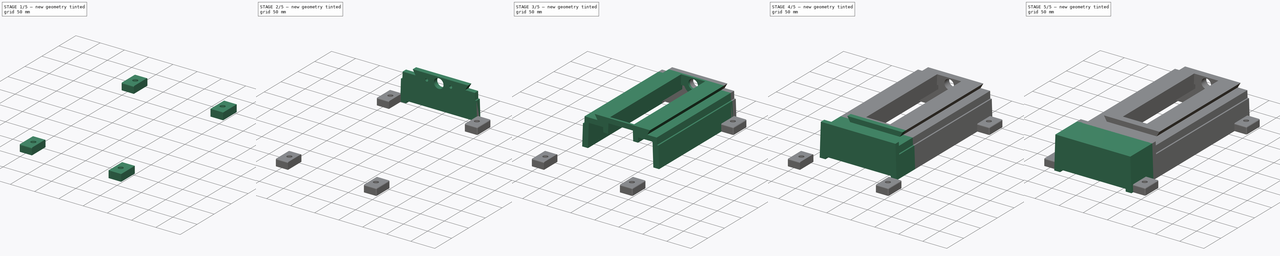
[diagram: build sequence overview — one tinted view per stage of 5, left to right]
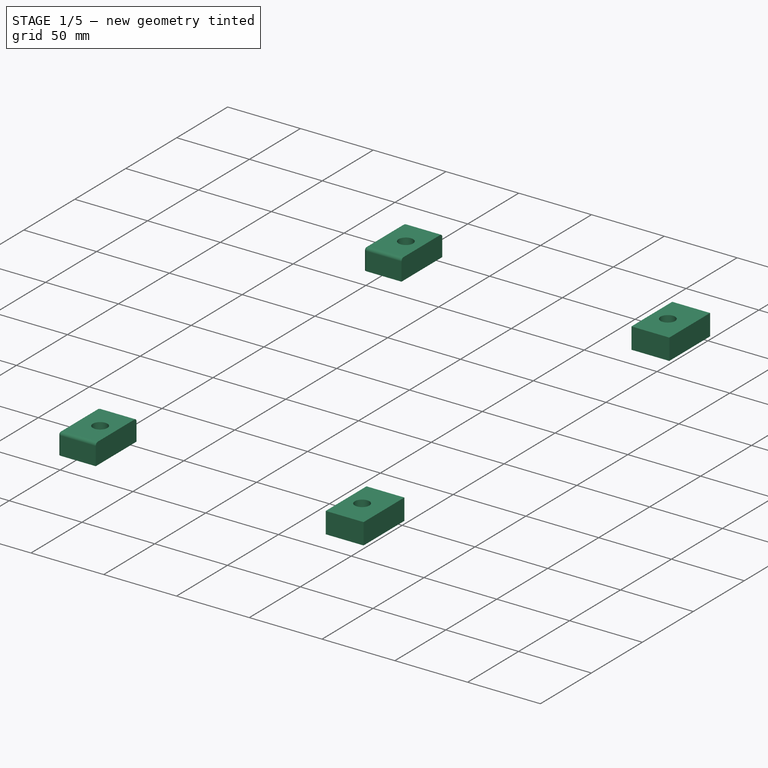
[diagram: stage 1 of 5 — iso view after this stage's code; geometry added in this stage tinted green]
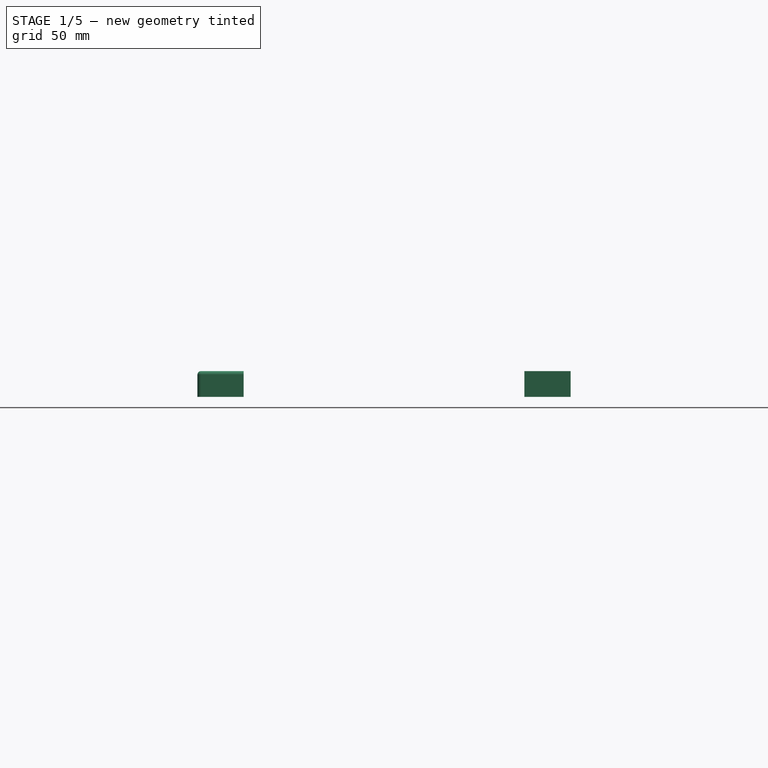
[diagram: stage 1 of 5 — front view after this stage's code; geometry added in this stage tinted green]
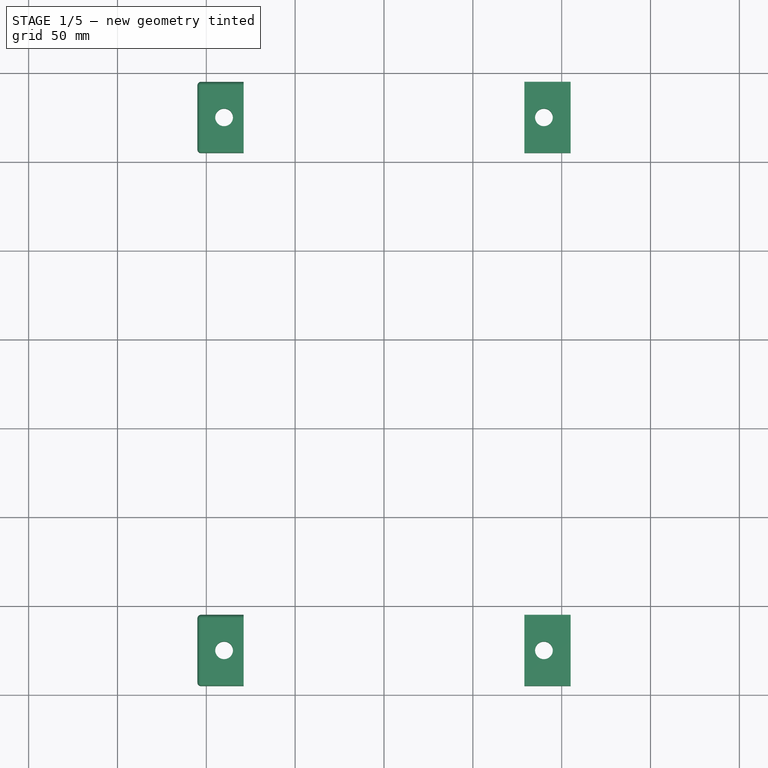
[diagram: stage 1 of 5 — top view after this stage's code; geometry added in this stage tinted green]
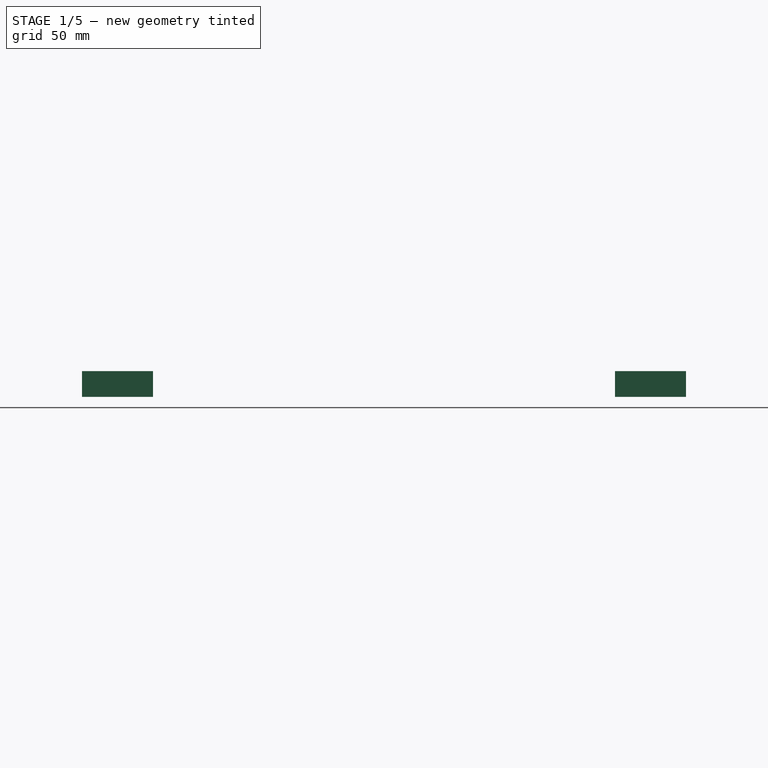
[diagram: stage 1 of 5 — right view after this stage's code; geometry added in this stage tinted green]
FCSTD DOCUMENT  (FreeCAD 0.15R4671 (Git))
Label: Base-131
License: CreativeCommons Attribution-ShareAlike
LicenseURL: http://creativecommons.org/licenses/by-sa/4.0/
objects: Sketcher::SketchObject×11, PartDesign::Pad×10, PartDesign::Fillet×4, App::DocumentObjectGroup×1, PartDesign::Pocket×1
note: 37 computed .brp shape members not serialized (recipe doc carries the construction recipe); baked Part::Feature solids carry a one-line shape summary decoded from their .brp

FEATURE [Sketcher::SketchObject] Sketch011  label="Sketch-011"
  sketch-geometry (20):
    g0: LineSegment StartX=-105 StartY=-5 StartZ=0 EndX=-79 EndY=-5 EndZ=0
    g1: LineSegment StartX=-79 StartY=-5 StartZ=0 EndX=-79 EndY=-45 EndZ=0
    g2: LineSegment StartX=-79 StartY=-45 StartZ=0 EndX=-105 EndY=-45 EndZ=0
    g3: LineSegment StartX=-105 StartY=-45 StartZ=0 EndX=-105 EndY=-5 EndZ=0
    g4: LineSegment StartX=79 StartY=-5 StartZ=0 EndX=105 EndY=-5 EndZ=0
    g5: LineSegment StartX=105 StartY=-5 StartZ=0 EndX=105 EndY=-45 EndZ=0
    g6: LineSegment StartX=105 StartY=-45 StartZ=0 EndX=79 EndY=-45 EndZ=0
    g7: LineSegment StartX=79 StartY=-45 StartZ=0 EndX=79 EndY=-5 EndZ=0
    g8: LineSegment StartX=-105 StartY=-305 StartZ=0 EndX=-79 EndY=-305 EndZ=0
    g9: LineSegment StartX=-79 StartY=-305 StartZ=0 EndX=-79 EndY=-345 EndZ=0
    g10: LineSegment StartX=-79 StartY=-345 StartZ=0 EndX=-105 EndY=-345 EndZ=0
    g11: LineSegment StartX=-105 StartY=-345 StartZ=0 EndX=-105 EndY=-305 EndZ=0
    g12: LineSegment StartX=79 StartY=-305 StartZ=0 EndX=105 EndY=-305 EndZ=0
    g13: LineSegment StartX=105 StartY=-305 StartZ=0 EndX=105 EndY=-345 EndZ=0
    g14: LineSegment StartX=105 StartY=-345 StartZ=0 EndX=79 EndY=-345 EndZ=0
    g15: LineSegment StartX=79 StartY=-345 StartZ=0 EndX=79 EndY=-305 EndZ=0
    g16: Circle CenterX=-90 CenterY=-25 CenterZ=0 NormalX=0 NormalY=0 NormalZ=1 Radius=5
    g17: Circle CenterX=90 CenterY=-25 CenterZ=0 NormalX=0 NormalY=0 NormalZ=1 Radius=5
    g18: Circle CenterX=90 CenterY=-325 CenterZ=0 NormalX=0 NormalY=0 NormalZ=1 Radius=5
    g19: Circle CenterX=-90 CenterY=-325 CenterZ=0 NormalX=0 NormalY=0 NormalZ=1 Radius=5
  constraints (56):
    c: Coincident(g0,g1)
    c: Coincident(g1,g2)
    c: Coincident(g2,g3)
    c: Coincident(g3,g0)
    c: Horizontal(g0)
    c: Horizontal(g2)
    c: Vertical(g1)
    c: Vertical(g3)
    c: Coincident(g4,g5)
    c: Coincident(g5,g6)
    c: Coincident(g6,g7)
    c: Coincident(g7,g4)
    c: Horizontal(g4)
    c: Horizontal(g6)
    c: Vertical(g5)
    c: Vertical(g7)
    c: Coincident(g8,g9)
    c: Coincident(g9,g10)
    c: Coincident(g10,g11)
    c: Coincident(g11,g8)
    c: Horizontal(g8)
    c: Horizontal(g10)
    c: Vertical(g9)
    c: Vertical(g11)
    c: Coincident(g12,g13)
    c: Coincident(g13,g14)
    c: Coincident(g14,g15)
    c: Coincident(g15,g12)
    c: Horizontal(g12)
    c: Horizontal(g14)
    c: Vertical(g13)
    c: Vertical(g15)
    c: Symmetric(g0,g4,g-2)
    c: Symmetric(g9,g14,g-2)
    c: Equal(g0,g4)
    c: Equal(g4,g12)
    c: Equal(g12,g8)
    c: Equal(g3,g5)
    c: Equal(g5,g13)
    c: Equal(g13,g11)
    c: DistanceY(g5,g4) = 40
    c: DistanceX(g4,g4) = 26
    c: Equal(g16,g17)
    c: Equal(g17,g18)
    c: Equal(g18,g19)
    c: Radius(g17) = 5
    c: DistanceX(g0,g4) = 158
    c: Symmetric(g16,g17,g-2)
    c: DistanceX(g16,g17) = 180
    c: DistanceY(g-1,g4) = -5
    c: DistanceY(g17,g4) = 20
    c: DistanceX(g8,g12) = 158
    c: DistanceX(g18,g19) = -180
    c: Symmetric(g19,g18,g-2)
    c: DistanceY(g18,g12) = 20
    c: DistanceY(g16,g19) = -300
FEATURE [PartDesign::Pad] Pad009
  Length = 14.5
  Length2 = 100
  Sketch = -> Sketch011
  Type = 0
FEATURE [PartDesign::Fillet] Fillet
  Base = -> Pad009 [Edge46,Edge49,Edge57,Edge53,Edge55]
  Radius = 2
FEATURE [PartDesign::Fillet] Fillet001
  Base = -> Fillet [Edge55,Edge57,Edge59,Edge48,Edge51]
  Radius = 2
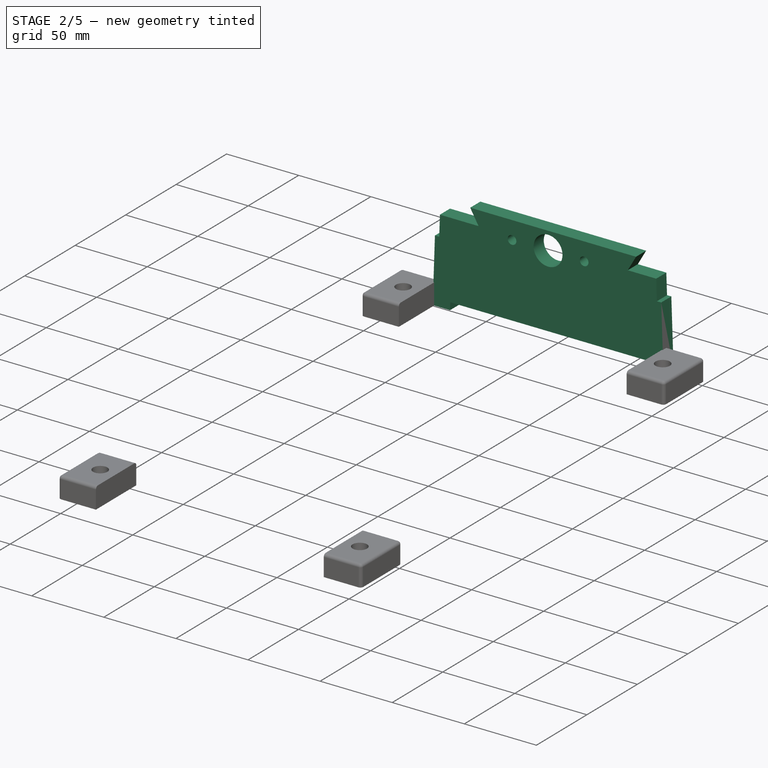
[diagram: stage 2 of 5 — iso view after this stage's code; geometry added in this stage tinted green]
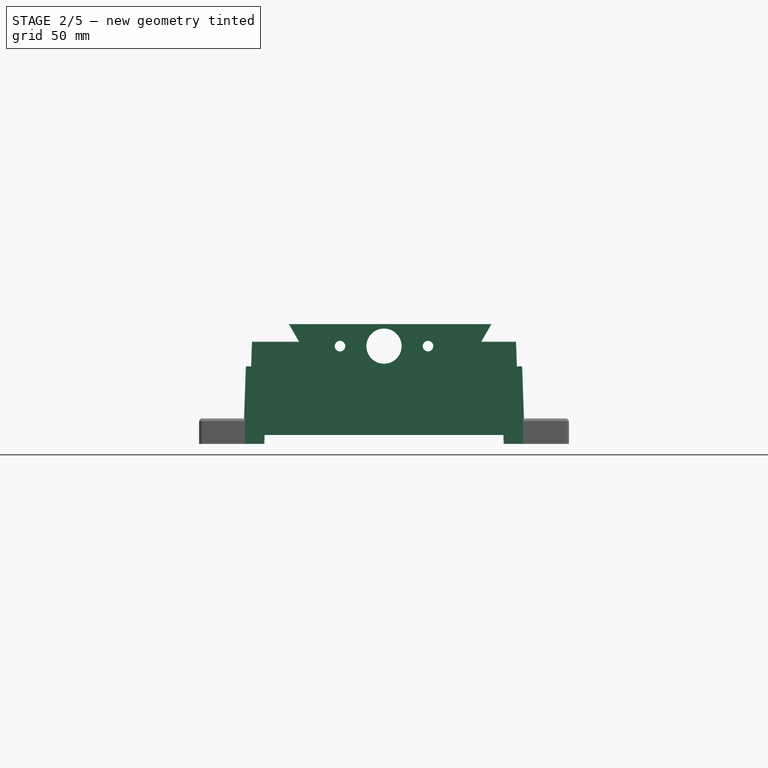
[diagram: stage 2 of 5 — front view after this stage's code; geometry added in this stage tinted green]
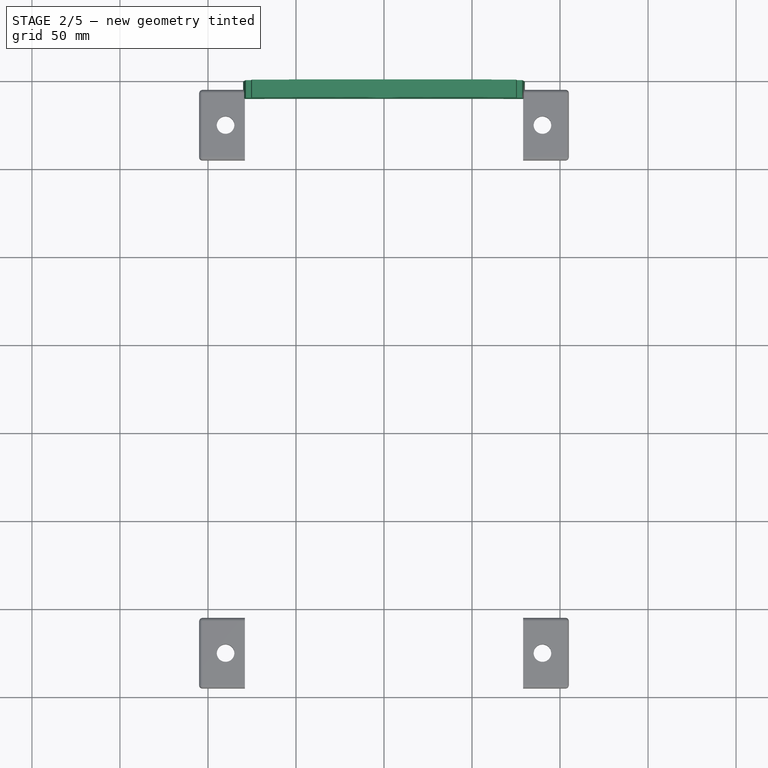
[diagram: stage 2 of 5 — top view after this stage's code; geometry added in this stage tinted green]
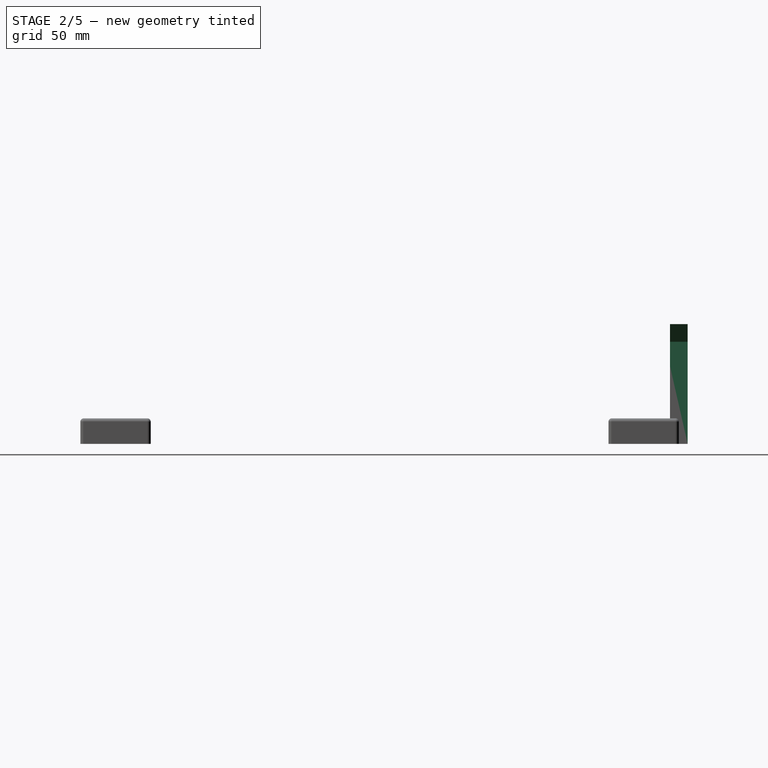
[diagram: stage 2 of 5 — right view after this stage's code; geometry added in this stage tinted green]
FEATURE [Sketcher::SketchObject] Sketch  label="Section-001"
  Placement = pos=(0,0,0) rot=(1,0,0;1.5708rad)
  sketch-geometry (19):
    g0: LineSegment StartX=-75 StartY=58 StartZ=0 EndX=-48.2265 EndY=58 EndZ=0
    g1: LineSegment StartX=-48.2265 StartY=58 StartZ=0 EndX=-54 EndY=68 EndZ=0
    g2: LineSegment StartX=-54 StartY=68 StartZ=0 EndX=61 EndY=68 EndZ=0
    g3: LineSegment StartX=61 StartY=68 StartZ=0 EndX=55.2265 EndY=58 EndZ=0
    g4: LineSegment StartX=55.2265 StartY=58 StartZ=0 EndX=75 EndY=58 EndZ=0
    g5: LineSegment StartX=80 StartY=0 StartZ=0 EndX=68 EndY=0 EndZ=0
    g6: LineSegment StartX=68 StartY=0 StartZ=0 EndX=67.8254 EndY=5 EndZ=0
    g7: LineSegment StartX=67.8254 StartY=5 StartZ=0 EndX=-67.8254 EndY=5 EndZ=0
    g8: LineSegment StartX=-67.8254 StartY=5 StartZ=0 EndX=-68 EndY=0 EndZ=0
    g9: LineSegment StartX=-68 StartY=0 StartZ=0 EndX=-80 EndY=0 EndZ=0
    g10: Circle CenterX=25 CenterY=55.5 CenterZ=0 NormalX=0 NormalY=0 NormalZ=1 Radius=3
    g11: Circle CenterX=-25 CenterY=55.5 CenterZ=0 NormalX=0 NormalY=0 NormalZ=1 Radius=3
    g12: Circle CenterX=0 CenterY=55.5 CenterZ=0 NormalX=0 NormalY=0 NormalZ=1 Radius=10
    g13: LineSegment StartX=-80 StartY=0 StartZ=0 EndX=-78.4635 EndY=44 EndZ=0
    g14: LineSegment StartX=-78.4635 StartY=44 StartZ=0 EndX=-75.4889 EndY=44 EndZ=0
    g15: LineSegment StartX=-75.4889 StartY=44 StartZ=0 EndX=-75 EndY=58 EndZ=0
    g16: LineSegment StartX=80 StartY=0 StartZ=0 EndX=78.4635 EndY=44 EndZ=0
    g17: LineSegment StartX=78.4635 StartY=44 StartZ=0 EndX=75.4889 EndY=44 EndZ=0
    g18: LineSegment StartX=75.4889 StartY=44 StartZ=0 EndX=75 EndY=58 EndZ=0
  constraints (55):
    c: Horizontal(g0)
    c: Coincident(g0,g1)
    c: Coincident(g1,g2)
    c: Horizontal(g2)
    c: Coincident(g2,g3)
    c: Coincident(g3,g4)
    c: Horizontal(g4)
    c: Horizontal(g5)
    c: Coincident(g5,g6)
    c: Coincident(g6,g7)
    c: Horizontal(g7)
    c: Coincident(g7,g8)
    c: PointOnObject(g8,g-1)
    c: Coincident(g8,g9)
    c: PointOnObject(g9,g-1)
    c: DistanceX(g1,g2) = 115
    c: DistanceY(g9,g0) = 58
    c: DistanceY(g1,g8) = -68
    c: Angle(g0,g1,g0) = 2.0944
    c: Angle(g4,g3) = 1.0472
    c: DistanceX(g0,g4) = 150
    c: Symmetric(g0,g4,g-2)
    c: Symmetric(g9,g5,g-2)
    c: DistanceX(g9,g5) = 160
    c: DistanceX(g-1,g12) = 0
    c: DistanceX(g11,g10) = 50
    c: Equal(g11,g10)
    c: DistanceY(g5,g6) = 5
    c: DistanceX(g5,g5) = -12
    c: Radius(g11) = 3
    c: Radius(g12) = 10
    c: Coincident(g13,g14)
    c: Coincident(g14,g15)
    c: Coincident(g9,g13)
    c: Coincident(g15,g0)
    c: Horizontal(g14)
    c: Coincident(g16,g17)
    c: Coincident(g17,g18)
    c: Coincident(g18,g4)
    c: Coincident(g5,g16)
    c: Angle(g9,g13) = 1.53589
    c: Horizontal(g17)
    c: Angle(g15,g0) = 1.6057
    c: Angle(g4,g18) = 1.6057
    c: Equal(g18,g15)
    c: DistanceY(g16,g4) = 14
    c: DistanceY(g2,g12) = -12.5
    c: DistanceY(g10,g2) = 12.5
    c: Equal(g9,g5)
    c: Angle(g8,g7) = 1.6057
    c: Angle(g7,g6) = 1.6057
    c: DistanceX(g11,g12) = 25
    c: DistanceY(g11,g1) = 12.5
    c: Angle(g16,g5) = 1.53589
    c: DistanceX(g4,g2) = -14
FEATURE [App::DocumentObjectGroup] Group
FEATURE [PartDesign::Pad] Pad  label="X-Axis Front"
  Length = 10
  Length2 = 100
  Placement = pos=(0,0,0) rot=(1,0,0;1.5708rad)
  Sketch = -> Sketch
  Type = 0
FEATURE [PartDesign::Fillet] Fillet002
  Base = -> Fillet001 [Edge81,Edge83,Edge86,Edge89,Edge84]
  Radius = 2
FEATURE [PartDesign::Fillet] Fillet003
  Base = -> Fillet002 [Edge98,Edge100,Edge103,Edge106,Edge101]
  Radius = 2
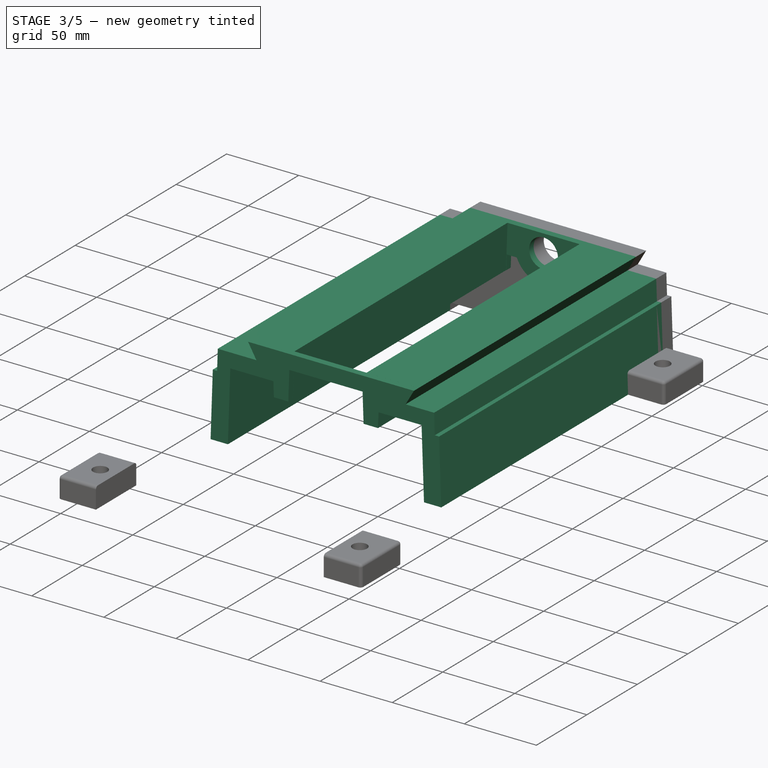
[diagram: stage 3 of 5 — iso view after this stage's code; geometry added in this stage tinted green]
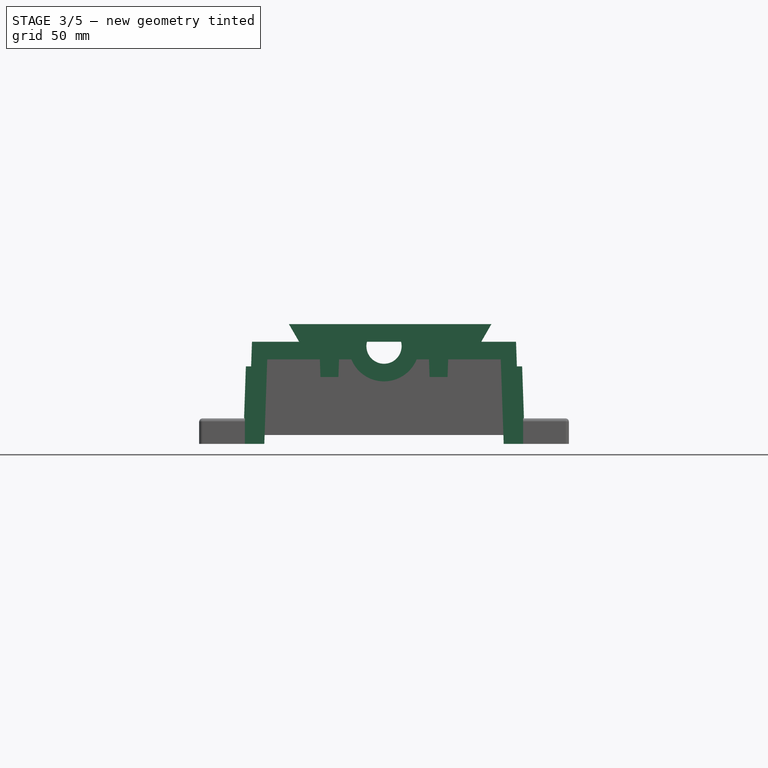
[diagram: stage 3 of 5 — front view after this stage's code; geometry added in this stage tinted green]
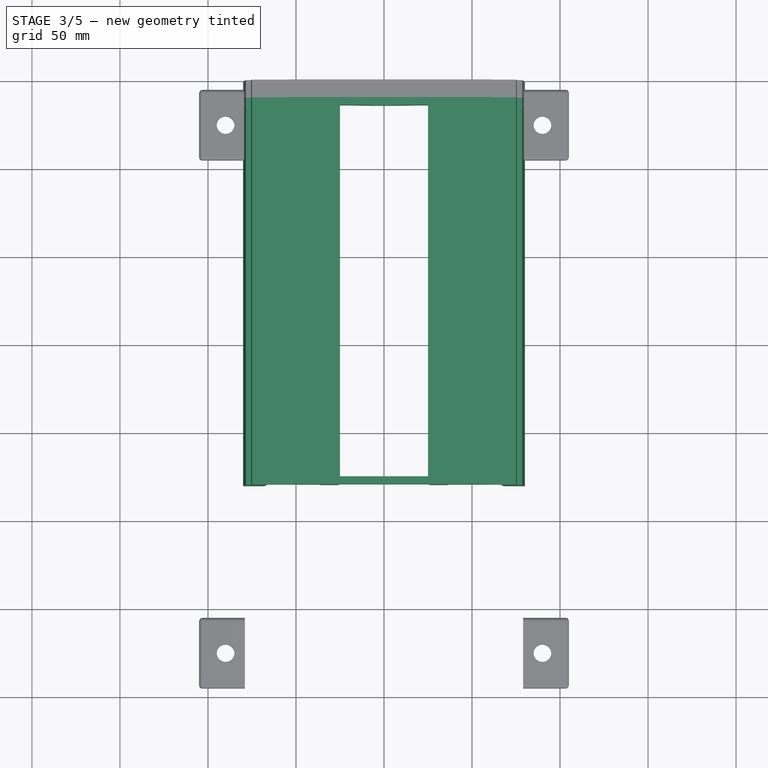
[diagram: stage 3 of 5 — top view after this stage's code; geometry added in this stage tinted green]
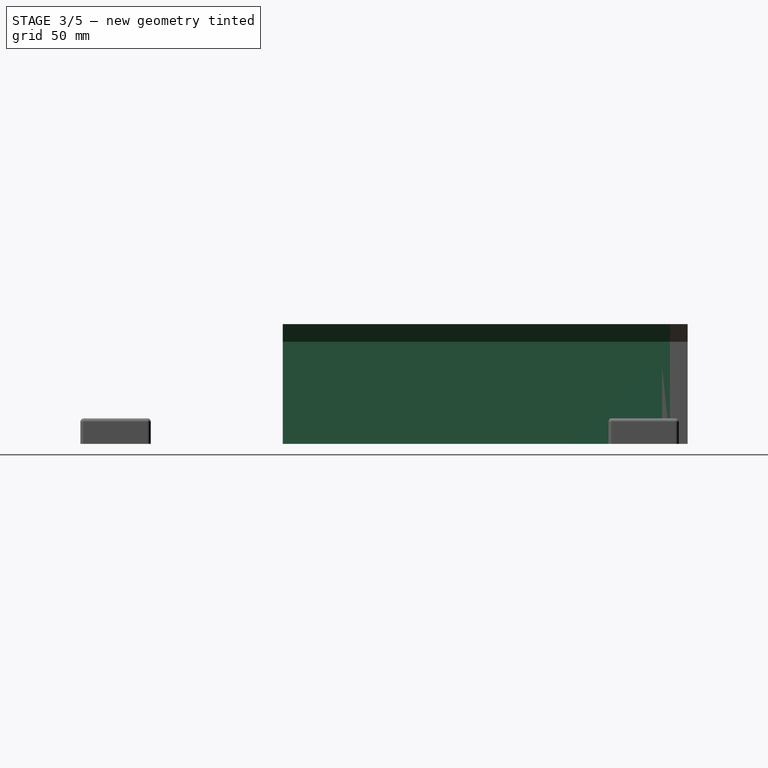
[diagram: stage 3 of 5 — right view after this stage's code; geometry added in this stage tinted green]
FEATURE [Sketcher::SketchObject] Sketch002  label="Section-002"
  Placement = pos=(0,-10,0) rot=(1,0,0;1.5708rad)
  Support = -> Pad [Face21]
  sketch-geometry (27):
    g0: LineSegment StartX=-75 StartY=58 StartZ=0 EndX=-48.2265 EndY=58 EndZ=0
    g1: LineSegment StartX=-48.2265 StartY=58 StartZ=0 EndX=-54 EndY=68 EndZ=0
    g2: LineSegment StartX=-54 StartY=68 StartZ=0 EndX=61 EndY=68 EndZ=0
    g3: LineSegment StartX=61 StartY=68 StartZ=0 EndX=55.2265 EndY=58 EndZ=0
    g4: LineSegment StartX=55.2265 StartY=58 StartZ=0 EndX=75 EndY=58 EndZ=0
    g5: LineSegment StartX=80 StartY=0 StartZ=0 EndX=68 EndY=0 EndZ=0
    g6: LineSegment StartX=68 StartY=0 StartZ=0 EndX=66.3238 EndY=48 EndZ=0
    g7: LineSegment StartX=-66.3238 StartY=48 StartZ=0 EndX=-68 EndY=0 EndZ=0
    g8: LineSegment StartX=-68 StartY=0 StartZ=0 EndX=-80 EndY=0 EndZ=0
    g9: Circle CenterX=0 CenterY=55.5 CenterZ=0 NormalX=0 NormalY=0 NormalZ=1 Radius=10
    g10: LineSegment StartX=-80 StartY=0 StartZ=0 EndX=-78.4635 EndY=44 EndZ=0
    g11: LineSegment StartX=-78.4635 StartY=44 StartZ=0 EndX=-75.4889 EndY=44 EndZ=0
    g12: LineSegment StartX=-75.4889 StartY=44 StartZ=0 EndX=-75 EndY=58 EndZ=0
    g13: LineSegment StartX=80 StartY=0 StartZ=0 EndX=78.4635 EndY=44 EndZ=0
    g14: LineSegment StartX=78.4635 StartY=44 StartZ=0 EndX=75.4889 EndY=44 EndZ=0
    g15: LineSegment StartX=75.4889 StartY=44 StartZ=0 EndX=75 EndY=58 EndZ=0
    g16: ArcOfCircle CenterX=0 CenterY=55.5 CenterZ=0 NormalX=0 NormalY=0 NormalZ=1 Radius=20 StartAngle=3.52599 EndAngle=5.89879
    g17: LineSegment StartX=-66.3238 StartY=48 StartZ=0 EndX=-36.2484 EndY=48 EndZ=0
    g18: LineSegment StartX=-36.2484 StartY=48 StartZ=0 EndX=-35.8992 EndY=38 EndZ=0
    g19: LineSegment StartX=-35.8992 StartY=38 StartZ=0 EndX=-25.8992 EndY=38 EndZ=0
    g20: LineSegment StartX=-25.8992 StartY=38 StartZ=0 EndX=-25.55 EndY=48 EndZ=0
    g21: LineSegment StartX=-25.55 StartY=48 StartZ=0 EndX=-18.5405 EndY=48 EndZ=0
    g22: LineSegment StartX=18.5405 StartY=48 StartZ=0 EndX=25.55 EndY=48 EndZ=0
    g23: LineSegment StartX=25.55 StartY=48 StartZ=0 EndX=25.8992 EndY=38 EndZ=0
    g24: LineSegment StartX=25.8992 StartY=38 StartZ=0 EndX=35.8992 EndY=38 EndZ=0
    g25: LineSegment StartX=35.8992 StartY=38 StartZ=0 EndX=36.2484 EndY=48 EndZ=0
    g26: LineSegment StartX=36.2484 StartY=48 StartZ=0 EndX=66.3238 EndY=48 EndZ=0
  constraints (79):
    c: Horizontal(g0)
    c: Coincident(g0,g1)
    c: Coincident(g1,g2)
    c: Horizontal(g2)
    c: Coincident(g2,g3)
    c: Coincident(g3,g4)
    c: Horizontal(g4)
    c: Horizontal(g5)
    c: Coincident(g5,g6)
    c: PointOnObject(g7,g-1)
    c: Coincident(g7,g8)
    c: PointOnObject(g8,g-1)
    c: DistanceX(g1,g2) = 115
    c: DistanceY(g8,g0) = 58
    c: DistanceY(g1,g7) = -68
    c: Angle(g0,g1,g0) = 2.0944
    c: Angle(g4,g3) = 1.0472
    c: DistanceX(g0,g4) = 150
    c: Symmetric(g0,g4,g-2)
    c: Symmetric(g8,g5,g-2)
    c: DistanceX(g8,g5) = 160
    c: DistanceX(g-1,g9) = 0
    c: DistanceY(g5,g6) = 48
    c: DistanceX(g5,g5) = -12
    c: Radius(g9) = 10
    c: Coincident(g10,g11)
    c: Coincident(g11,g12)
    c: Coincident(g8,g10)
    c: Coincident(g12,g0)
    c: Horizontal(g11)
    c: Coincident(g13,g14)
    c: Coincident(g14,g15)
    c: Coincident(g15,g4)
    c: Coincident(g5,g13)
    c: Angle(g8,g10) = 1.53589
    c: Horizontal(g14)
    c: Angle(g12,g0) = 1.6057
    c: Angle(g4,g15) = 1.6057
    c: Equal(g15,g12)
    c: DistanceY(g13,g4) = 14
    c: DistanceY(g2,g9) = -12.5
    c: Equal(g8,g5)
    c: Angle(g13,g5) = 1.53589
    c: Coincident(g17,g18)
    c: Coincident(g18,g19)
    c: Coincident(g19,g20)
    c: Coincident(g20,g21)
    c: Equal(g7,g6)
    c: Coincident(g7,g17)
    c: Horizontal(g17)
    c: DistanceX(g18,g19) = 10
    c: Coincident(g21,g16)
    c: Horizontal(g21)
    c: Coincident(g22,g23)
    c: Coincident(g23,g24)
    c: Coincident(g24,g25)
    c: Coincident(g25,g26)
    c: Coincident(g26,g6)
    c: Coincident(g22,g16)
    c: Horizontal(g22)
    c: Coincident(g16,g9)
    c: Equal(g19,g24)
    c: Horizontal(g24)
    c: Horizontal(g19)
    c: Horizontal(g26)
    c: Angle(g26,g6) = 1.6057
    c: Angle(g7,g17) = 1.6057
    c: Angle(g17,g18) = 1.6057
    c: Angle(g25,g26) = 1.6057
    c: Radius(g16) = 20
    c: Angle(g20,g21) = 1.6057
    c: Angle(g22,g23) = 1.6057
    c: DistanceX(g9,g20) = -25.55
    c: DistanceX(g9,g22) = 25.55
    c: DistanceY(g9,g22) = -7.5
    c: DistanceY(g20,g9) = 7.5
    c: DistanceY(g18,g7) = -38
    c: DistanceY(g24,g5) = -38
    c: DistanceX(g4,g2) = -14
FEATURE [PartDesign::Pad] Pad001
  Length = 4.5
  Length2 = 100
  Placement = pos=(0,0,0) rot=(1,0,0;1.5708rad)
  Sketch = -> Sketch002
  Type = 0
FEATURE [Sketcher::SketchObject] Sketch001  label="Section-003"
  Placement = pos=(0,-14.5,0) rot=(1,0,0;1.5708rad)
  Support = -> Pad001 [Face40]
  sketch-geometry (24):
    g0: LineSegment StartX=-75 StartY=58 StartZ=0 EndX=-48.2265 EndY=58 EndZ=0
    g1: LineSegment StartX=-48.2265 StartY=58 StartZ=0 EndX=-54 EndY=68 EndZ=0
    g2: LineSegment StartX=61 StartY=68.005 StartZ=0 EndX=55.2236 EndY=58 EndZ=0
    g3: LineSegment StartX=55.2236 StartY=58 StartZ=0 EndX=75 EndY=58 EndZ=0
    g4: LineSegment StartX=80 StartY=0 StartZ=0 EndX=68 EndY=0 EndZ=0
    g5: LineSegment StartX=68 StartY=0 StartZ=0 EndX=66.3238 EndY=48 EndZ=0
    g6: LineSegment StartX=-66.3238 StartY=48 StartZ=0 EndX=-68 EndY=0 EndZ=0
    g7: LineSegment StartX=-68 StartY=0 StartZ=0 EndX=-80 EndY=0 EndZ=0
    g8: LineSegment StartX=-80 StartY=0 StartZ=0 EndX=-78.4635 EndY=44 EndZ=0
    g9: LineSegment StartX=-78.4635 StartY=44 StartZ=0 EndX=-75.4889 EndY=44 EndZ=0
    g10: LineSegment StartX=-75.4889 StartY=44 StartZ=0 EndX=-75 EndY=58 EndZ=0
    g11: LineSegment StartX=80 StartY=0 StartZ=0 EndX=78.4635 EndY=44 EndZ=0
    g12: LineSegment StartX=78.4635 StartY=44 StartZ=0 EndX=75.4889 EndY=44 EndZ=0
    g13: LineSegment StartX=75.4889 StartY=44 StartZ=0 EndX=75 EndY=58 EndZ=0
    g14: LineSegment StartX=-25 StartY=68 StartZ=0 EndX=-26.0476 EndY=38 EndZ=0
    g15: LineSegment StartX=-26.0476 StartY=38 StartZ=0 EndX=-36.0476 EndY=38 EndZ=0
    g16: LineSegment StartX=-36.0476 StartY=38 StartZ=0 EndX=-36.3968 EndY=48 EndZ=0
    g17: LineSegment StartX=-36.3968 StartY=48 StartZ=0 EndX=-66.3238 EndY=48 EndZ=0
    g18: LineSegment StartX=-54 StartY=68 StartZ=0 EndX=-25 EndY=68 EndZ=0
    g19: LineSegment StartX=61 StartY=68.005 StartZ=0 EndX=25 EndY=68.005 EndZ=0
    g20: LineSegment StartX=25 StartY=68.005 StartZ=0 EndX=26.0476 EndY=38.005 EndZ=0
    g21: LineSegment StartX=26.0476 StartY=38.005 StartZ=0 EndX=36.0476 EndY=38.005 EndZ=0
    g22: LineSegment StartX=36.0476 StartY=38.005 StartZ=0 EndX=36.3967 EndY=48 EndZ=0
    g23: LineSegment StartX=36.3967 StartY=48 StartZ=0 EndX=66.3238 EndY=48 EndZ=0
  constraints (69):
    c: Horizontal(g0)
    c: Coincident(g0,g1)
    c: Coincident(g2,g3)
    c: Horizontal(g3)
    c: Horizontal(g4)
    c: Coincident(g4,g5)
    c: PointOnObject(g6,g-1)
    c: Coincident(g6,g7)
    c: PointOnObject(g7,g-1)
    c: DistanceX(g1,g2) = 115
    c: DistanceY(g7,g0) = 58
    c: DistanceY(g1,g6) = -68
    c: Angle(g0,g1,g0) = 2.0944
    c: Angle(g3,g2) = 1.0472
    c: DistanceX(g0,g3) = 150
    c: Symmetric(g0,g3,g-2)
    c: Symmetric(g7,g4,g-2)
    c: DistanceX(g7,g4) = 160
    c: DistanceY(g4,g5) = 48
    c: DistanceX(g4,g4) = -12
    c: Coincident(g8,g9)
    c: Coincident(g9,g10)
    c: Coincident(g7,g8)
    c: Coincident(g10,g0)
    c: Horizontal(g9)
    c: Coincident(g11,g12)
    c: Coincident(g12,g13)
    c: Coincident(g13,g3)
    c: Coincident(g4,g11)
    c: Angle(g7,g8) = 1.53589
    c: Horizontal(g12)
    c: Angle(g10,g0) = 1.6057
    c: Angle(g3,g13) = 1.6057
    c: Equal(g13,g10)
    c: DistanceY(g11,g3) = 14
    c: Equal(g7,g4)
    c: Angle(g11,g4) = 1.53589
    c: Coincident(g14,g15)
    c: Horizontal(g15)
    c: Coincident(g15,g16)
    c: Coincident(g16,g17)
    c: Horizontal(g17)
    c: Coincident(g17,g6)
    c: Horizontal(g18)
    c: Horizontal(g19)
    c: Coincident(g19,g20)
    c: Coincident(g20,g21)
    c: Horizontal(g21)
    c: Coincident(g21,g22)
    c: Coincident(g22,g23)
    c: Horizontal(g23)
    c: Coincident(g23,g5)
    c: Coincident(g19,g2)
    c: Coincident(g18,g14)
    c: Coincident(g1,g18)
    c: Angle(g6,g17) = 1.6057
    c: Angle(g23,g5) = 1.6057
    c: Angle(g22,g23) = 1.6057
    c: Angle(g17,g16) = 1.6057
    c: Equal(g15,g21)
    c: DistanceX(g15,g14) = 10
    c: DistanceX(g-1,g14) = -25
    c: Angle(g18,g14) = 1.53589
    c: Angle(g20,g19) = 1.53589
    c: DistanceX(g-1,g19) = 25
    c: DistanceY(g14,g14) = 30
    c: Equal(g20,g14)
    c: DistanceY(g6,g6) = 48
    c: DistanceX(g2,g3) = 14
FEATURE [PartDesign::Pad] Pad002
  Length = 211
  Length2 = 100
  Placement = pos=(0,0,0) rot=(1,0,0;1.5708rad)
  Sketch = -> Sketch001
  Type = 0
FEATURE [Sketcher::SketchObject] Sketch009  label="Section-004"
  Placement = pos=(0,-225.5,0) rot=(1,0,0;1.5708rad)
  Support = -> Pad002 [Face74]
  sketch-geometry (24):
    g0: LineSegment StartX=-75 StartY=58 StartZ=0 EndX=-48.2265 EndY=58 EndZ=0
    g1: LineSegment StartX=-48.2265 StartY=58 StartZ=0 EndX=-54 EndY=68 EndZ=0
    g2: LineSegment StartX=61 StartY=68 StartZ=0 EndX=55.2265 EndY=58 EndZ=0
    g3: LineSegment StartX=55.2265 StartY=58 StartZ=0 EndX=75 EndY=58 EndZ=0
    g4: LineSegment StartX=80 StartY=0 StartZ=0 EndX=68 EndY=0 EndZ=0
    g5: LineSegment StartX=68 StartY=0 StartZ=0 EndX=66.3238 EndY=48 EndZ=0
    g6: LineSegment StartX=-66.3238 StartY=48 StartZ=0 EndX=-68 EndY=0 EndZ=0
    g7: LineSegment StartX=-68 StartY=0 StartZ=0 EndX=-80 EndY=0 EndZ=0
    g8: LineSegment StartX=-80 StartY=0 StartZ=0 EndX=-78.4635 EndY=44 EndZ=0
    g9: LineSegment StartX=-78.4635 StartY=44 StartZ=0 EndX=-75.4889 EndY=44 EndZ=0
    g10: LineSegment StartX=-75.4889 StartY=44 StartZ=0 EndX=-75 EndY=58 EndZ=0
    g11: LineSegment StartX=80 StartY=0 StartZ=0 EndX=78.4635 EndY=44 EndZ=0
    g12: LineSegment StartX=78.4635 StartY=44 StartZ=0 EndX=75.4889 EndY=44 EndZ=0
    g13: LineSegment StartX=75.4889 StartY=44 StartZ=0 EndX=75 EndY=58 EndZ=0
    g14: LineSegment StartX=-26.0984 StartY=38 StartZ=0 EndX=-36.0984 EndY=38 EndZ=0
    g15: LineSegment StartX=-36.0984 StartY=38 StartZ=0 EndX=-36.4476 EndY=48 EndZ=0
    g16: LineSegment StartX=-36.4476 StartY=48 StartZ=0 EndX=-66.3238 EndY=48 EndZ=0
    g17: LineSegment StartX=-54 StartY=68 StartZ=0 EndX=61 EndY=68 EndZ=0
    g18: LineSegment StartX=26.1 StartY=38 StartZ=0 EndX=36.1 EndY=38 EndZ=0
    g19: LineSegment StartX=36.1 StartY=38 StartZ=0 EndX=36.4492 EndY=48 EndZ=0
    g20: LineSegment StartX=36.4492 StartY=48 StartZ=0 EndX=66.3238 EndY=48 EndZ=0
    g21: LineSegment StartX=-26.0984 StartY=38 StartZ=0 EndX=-25.4 EndY=58 EndZ=0
    g22: LineSegment StartX=-25.4 StartY=58 StartZ=0 EndX=25.4016 EndY=58 EndZ=0
    g23: LineSegment StartX=25.4016 StartY=58 StartZ=0 EndX=26.1 EndY=38 EndZ=0
  constraints (70):
    c: Horizontal(g0)
    c: Coincident(g0,g1)
    c: Coincident(g2,g3)
    c: Horizontal(g3)
    c: Horizontal(g4)
    c: Coincident(g4,g5)
    c: PointOnObject(g6,g-1)
    c: Coincident(g6,g7)
    c: PointOnObject(g7,g-1)
    c: DistanceX(g1,g2) = 115
    c: DistanceY(g7,g0) = 58
    c: DistanceY(g1,g6) = -68
    c: Angle(g0,g1,g0) = 2.0944
    c: Angle(g3,g2) = 1.0472
    c: DistanceX(g0,g3) = 150
    c: Symmetric(g0,g3,g-2)
    c: Symmetric(g7,g4,g-2)
    c: DistanceX(g7,g4) = 160
    c: DistanceY(g4,g5) = 48
    c: DistanceX(g4,g4) = -12
    c: Coincident(g8,g9)
    c: Coincident(g9,g10)
    c: Coincident(g7,g8)
    c: Coincident(g10,g0)
    c: Horizontal(g9)
    c: Coincident(g11,g12)
    c: Coincident(g12,g13)
    c: Coincident(g13,g3)
    c: Coincident(g4,g11)
    c: Angle(g7,g8) = 1.53589
    c: Horizontal(g12)
    c: Angle(g10,g0) = 1.6057
    c: Angle(g3,g13) = 1.6057
    c: Equal(g13,g10)
    c: DistanceY(g11,g3) = 14
    c: Equal(g7,g4)
    c: Angle(g11,g4) = 1.53589
    c: Horizontal(g14)
    c: Coincident(g14,g15)
    c: Coincident(g15,g16)
    c: Horizontal(g16)
    c: Coincident(g16,g6)
    c: Horizontal(g17)
    c: Horizontal(g18)
    c: Coincident(g18,g19)
    c: Coincident(g19,g20)
    c: Horizontal(g20)
    c: Coincident(g20,g5)
    c: Coincident(g1,g17)
    c: Angle(g6,g16) = 1.6057
    c: Angle(g20,g5) = 1.6057
    c: Angle(g19,g20) = 1.6057
    c: Angle(g16,g15) = 1.6057
    c: Equal(g14,g18)
    c: DistanceX(g14,g14) = 10
    c: DistanceY(g14,g17) = 30
    c: DistanceY(g6,g6) = 48
    c: Coincident(g21,g22)
    c: Horizontal(g22)
    c: Coincident(g22,g23)
    c: Coincident(g18,g23)
    c: Coincident(g14,g21)
    c: Angle(g21,g14) = 1.6057
    c: Angle(g18,g23) = 1.6057
    c: DistanceX(g18,g4) = 53.9
    c: DistanceX(g-1,g21) = -25.4
    c: Coincident(g17,g2)
    c: DistanceY(g22,g4) = -58
    c: DistanceY(g18,g2) = 30
    c: DistanceX(g2,g3) = 14
FEATURE [PartDesign::Pad] Pad003
  Length = 4.5
  Length2 = 100
  Placement = pos=(0,0,0) rot=(1,0,0;1.5708rad)
  Sketch = -> Sketch009
  Type = 0
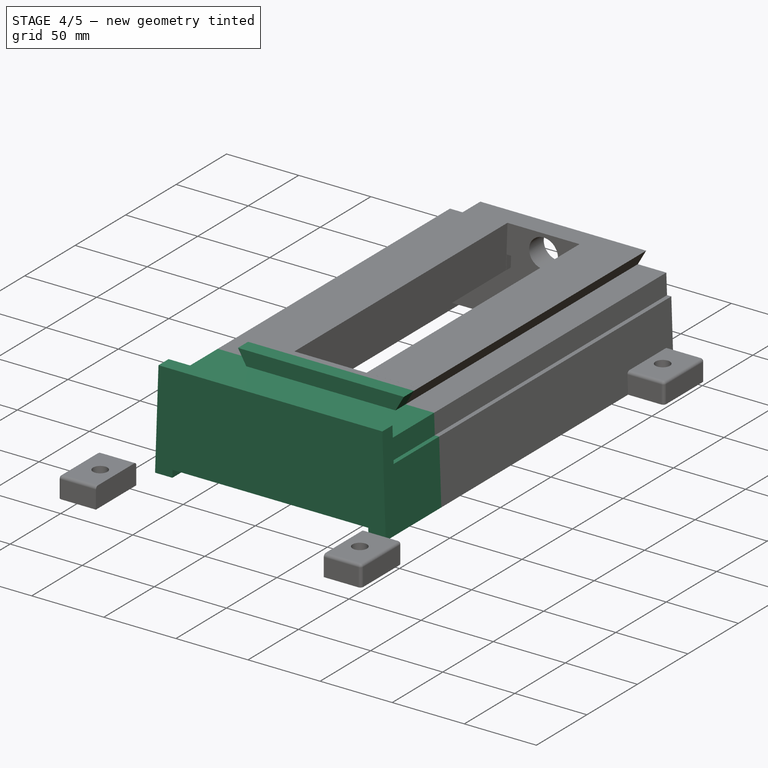
[diagram: stage 4 of 5 — iso view after this stage's code; geometry added in this stage tinted green]
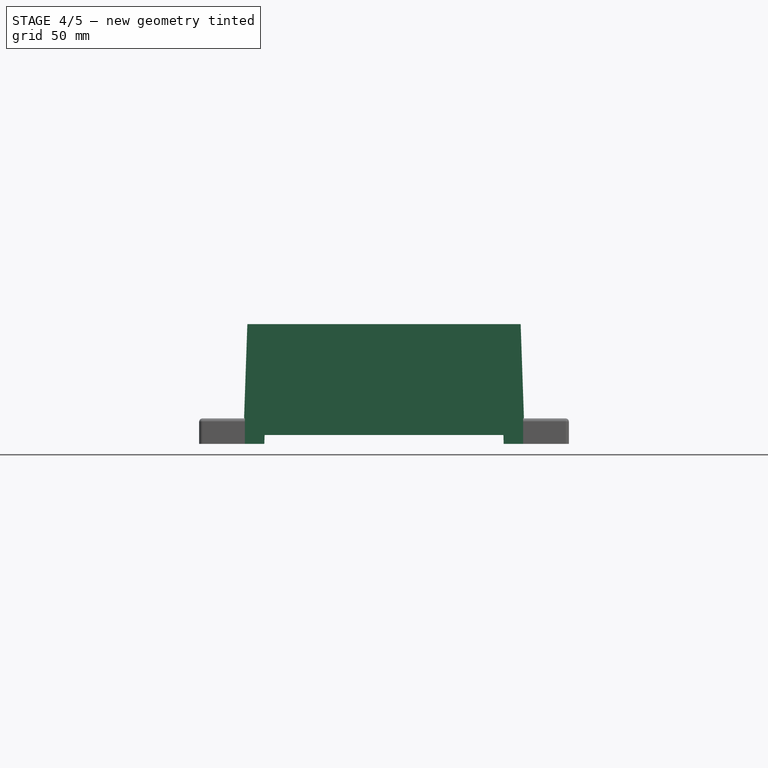
[diagram: stage 4 of 5 — front view after this stage's code; geometry added in this stage tinted green]
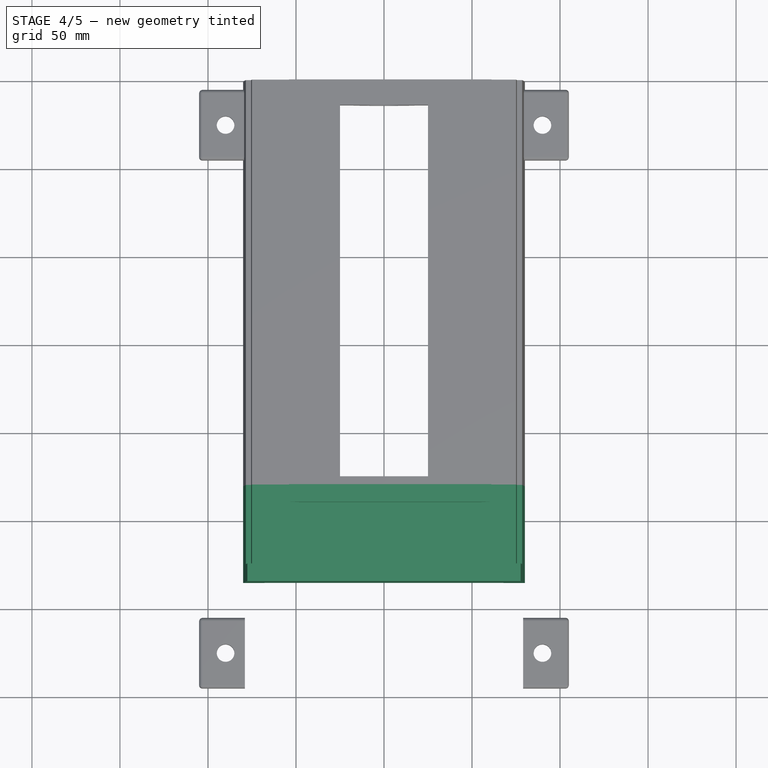
[diagram: stage 4 of 5 — top view after this stage's code; geometry added in this stage tinted green]
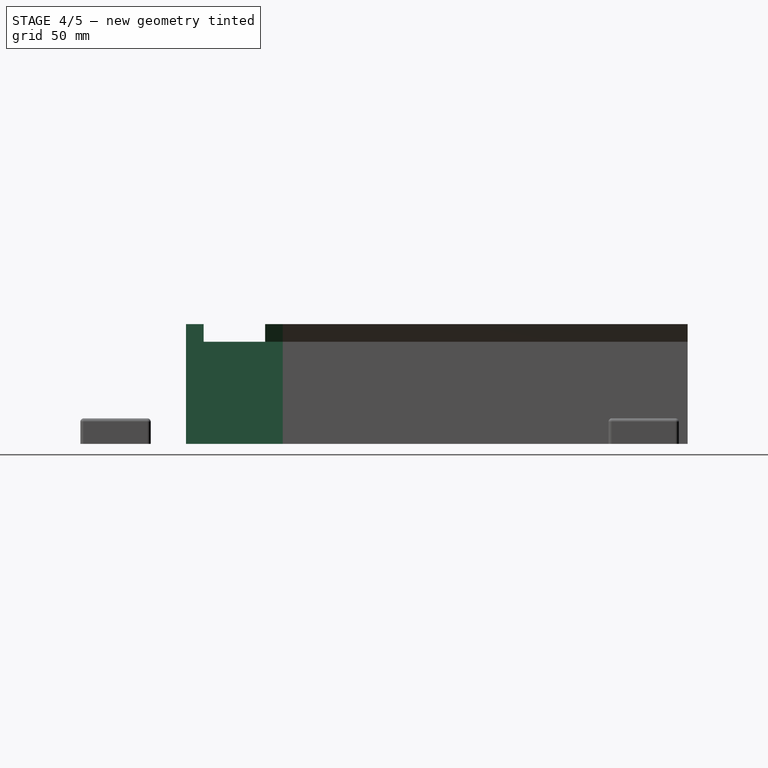
[diagram: stage 4 of 5 — right view after this stage's code; geometry added in this stage tinted green]
FEATURE [Sketcher::SketchObject] Sketch003  label="Section-005"
  Placement = pos=(0,-230,1e-12) rot=(1,0,0;1.5708rad)
  Support = -> Pad003 [Face93]
  sketch-geometry (16):
    g0: LineSegment StartX=-75 StartY=58 StartZ=0 EndX=-48.2265 EndY=58 EndZ=0
    g1: LineSegment StartX=-48.2265 StartY=58 StartZ=0 EndX=-54 EndY=68 EndZ=0
    g2: LineSegment StartX=-54 StartY=68 StartZ=0 EndX=61 EndY=68 EndZ=0
    g3: LineSegment StartX=61 StartY=68 StartZ=0 EndX=55.2265 EndY=58 EndZ=0
    g4: LineSegment StartX=55.2265 StartY=58 StartZ=0 EndX=75 EndY=58 EndZ=0
    g5: LineSegment StartX=80 StartY=0 StartZ=0 EndX=68 EndY=0 EndZ=0
    g6: LineSegment StartX=68 StartY=0 StartZ=0 EndX=67.8254 EndY=5 EndZ=0
    g7: LineSegment StartX=67.8254 StartY=5 StartZ=0 EndX=-67.8254 EndY=5 EndZ=0
    g8: LineSegment StartX=-67.8254 StartY=5 StartZ=0 EndX=-68 EndY=0 EndZ=0
    g9: LineSegment StartX=-68 StartY=0 StartZ=0 EndX=-80 EndY=0 EndZ=0
    g10: LineSegment StartX=-80 StartY=0 StartZ=0 EndX=-78.4635 EndY=44 EndZ=0
    g11: LineSegment StartX=-78.4635 StartY=44 StartZ=0 EndX=-75.4889 EndY=44 EndZ=0
    g12: LineSegment StartX=-75.4889 StartY=44 StartZ=0 EndX=-75 EndY=58 EndZ=0
    g13: LineSegment StartX=80 StartY=0 StartZ=0 EndX=78.4635 EndY=44 EndZ=0
    g14: LineSegment StartX=78.4635 StartY=44 StartZ=0 EndX=75.4889 EndY=44 EndZ=0
    g15: LineSegment StartX=75.4889 StartY=44 StartZ=0 EndX=75 EndY=58 EndZ=0
  constraints (46):
    c: Horizontal(g0)
    c: Coincident(g0,g1)
    c: Coincident(g1,g2)
    c: Horizontal(g2)
    c: Coincident(g2,g3)
    c: Coincident(g3,g4)
    c: Horizontal(g4)
    c: Horizontal(g5)
    c: Coincident(g5,g6)
    c: Coincident(g6,g7)
    c: Horizontal(g7)
    c: Coincident(g7,g8)
    c: PointOnObject(g8,g-1)
    c: Coincident(g8,g9)
    c: PointOnObject(g9,g-1)
    c: DistanceX(g1,g2) = 115
    c: DistanceY(g9,g0) = 58
    c: DistanceY(g1,g8) = -68
    c: Angle(g0,g1,g0) = 2.0944
    c: Angle(g4,g3) = 1.0472
    c: DistanceX(g0,g4) = 150
    c: Symmetric(g0,g4,g-2)
    c: Symmetric(g9,g5,g-2)
    c: DistanceX(g9,g5) = 160
    c: DistanceY(g5,g6) = 5
    c: DistanceX(g5,g5) = -12
    c: Coincident(g10,g11)
    c: Coincident(g11,g12)
    c: Coincident(g9,g10)
    c: Coincident(g12,g0)
    c: Horizontal(g11)
    c: Coincident(g13,g14)
    c: Coincident(g14,g15)
    c: Coincident(g15,g4)
    c: Coincident(g5,g13)
    c: Angle(g9,g10) = 1.53589
    c: Horizontal(g14)
    c: Angle(g12,g0) = 1.6057
    c: Angle(g4,g15) = 1.6057
    c: Equal(g15,g12)
    c: DistanceY(g13,g4) = 14
    c: Equal(g9,g5)
    c: Angle(g8,g7) = 1.6057
    c: Angle(g7,g6) = 1.6057
    c: Angle(g13,g5) = 1.53589
    c: DistanceX(g2,g4) = 14
FEATURE [PartDesign::Pad] Pad004
  Length = 10
  Length2 = 100
  Placement = pos=(0,0,0) rot=(1,0,0;1.5708rad)
  Sketch = -> Sketch003
  Type = 0
FEATURE [Sketcher::SketchObject] Sketch004  label="Section-006"
  Placement = pos=(0,-240,1e-12) rot=(1,0,0;1.5708rad)
  Support = -> Pad004 [Face120]
  sketch-geometry (13):
    g0: LineSegment StartX=-75 StartY=58 StartZ=0 EndX=0 EndY=58 EndZ=0
    g1: LineSegment StartX=0 StartY=58 StartZ=0 EndX=75 EndY=58 EndZ=0
    g2: LineSegment StartX=80 StartY=0 StartZ=0 EndX=68 EndY=0 EndZ=0
    g3: LineSegment StartX=68 StartY=0 StartZ=0 EndX=66.3238 EndY=48 EndZ=0
    g4: LineSegment StartX=66.3238 StartY=48 StartZ=0 EndX=-66.3238 EndY=48 EndZ=0
    g5: LineSegment StartX=-66.3238 StartY=48 StartZ=0 EndX=-68 EndY=0 EndZ=0
    g6: LineSegment StartX=-68 StartY=0 StartZ=0 EndX=-80 EndY=0 EndZ=0
    g7: LineSegment StartX=-80 StartY=0 StartZ=0 EndX=-78.4635 EndY=44 EndZ=0
    g8: LineSegment StartX=-78.4635 StartY=44 StartZ=0 EndX=-75.4889 EndY=44 EndZ=0
    g9: LineSegment StartX=-75.4889 StartY=44 StartZ=0 EndX=-75 EndY=58 EndZ=0
    g10: LineSegment StartX=80 StartY=0 StartZ=0 EndX=78.4635 EndY=44 EndZ=0
    g11: LineSegment StartX=78.4635 StartY=44 StartZ=0 EndX=75.4889 EndY=44 EndZ=0
    g12: LineSegment StartX=75.4889 StartY=44 StartZ=0 EndX=75 EndY=58 EndZ=0
  constraints (38):
    c: Horizontal(g0)
    c: Horizontal(g1)
    c: Horizontal(g2)
    c: Coincident(g2,g3)
    c: Coincident(g3,g4)
    c: Horizontal(g4)
    c: Coincident(g4,g5)
    c: PointOnObject(g5,g-1)
    c: Coincident(g5,g6)
    c: PointOnObject(g6,g-1)
    c: DistanceY(g6,g0) = 58
    c: DistanceX(g0,g1) = 150
    c: Symmetric(g0,g1,g-2)
    c: Symmetric(g6,g2,g-2)
    c: DistanceX(g6,g2) = 160
    c: DistanceY(g2,g3) = 48
    c: DistanceX(g2,g2) = -12
    c: Coincident(g7,g8)
    c: Coincident(g8,g9)
    c: Coincident(g6,g7)
    c: Coincident(g9,g0)
    c: Horizontal(g8)
    c: Coincident(g10,g11)
    c: Coincident(g11,g12)
    c: Coincident(g12,g1)
    c: Coincident(g2,g10)
    c: Angle(g6,g7) = 1.53589
    c: Horizontal(g11)
    c: Angle(g9,g0) = 1.6057
    c: Angle(g1,g12) = 1.6057
    c: Equal(g12,g9)
    c: DistanceY(g10,g1) = 14
    c: Equal(g6,g2)
    c: Angle(g5,g4) = 1.6057
    c: Angle(g4,g3) = 1.6057
    c: Angle(g10,g2) = 1.53589
    c: Coincident(g0,g1)
    c: DistanceX(g-1,g0) = 0
FEATURE [PartDesign::Pad] Pad005
  Length = 35
  Length2 = 100
  Placement = pos=(0,0,0) rot=(1,0,0;1.5708rad)
  Sketch = -> Sketch004
  Type = 0
FEATURE [Sketcher::SketchObject] Sketch006  label="Section-007"
  Placement = pos=(0,-275,2e-12) rot=(1,0,0;1.5708rad)
  Support = -> Pad005 [Face141]
  sketch-geometry (8):
    g0: LineSegment StartX=-77.6254 StartY=68 StartZ=0 EndX=77.6254 EndY=68 EndZ=0
    g1: LineSegment StartX=80 StartY=0 StartZ=0 EndX=68 EndY=0 EndZ=0
    g2: LineSegment StartX=68 StartY=0 StartZ=0 EndX=67.8254 EndY=5 EndZ=0
    g3: LineSegment StartX=67.8254 StartY=5 StartZ=0 EndX=-67.8254 EndY=5 EndZ=0
    g4: LineSegment StartX=-67.8254 StartY=5 StartZ=0 EndX=-68 EndY=0 EndZ=0
    g5: LineSegment StartX=-68 StartY=0 StartZ=0 EndX=-80 EndY=0 EndZ=0
    g6: LineSegment StartX=-80 StartY=0 StartZ=0 EndX=-77.6254 EndY=68 EndZ=0
    g7: LineSegment StartX=80 StartY=0 StartZ=0 EndX=77.6254 EndY=68 EndZ=0
  constraints (22):
    c: Coincident(g1,g2)
    c: Coincident(g2,g3)
    c: Horizontal(g3)
    c: Coincident(g3,g4)
    c: PointOnObject(g4,g-1)
    c: Coincident(g4,g5)
    c: PointOnObject(g5,g-1)
    c: Symmetric(g0,g0,g-2)
    c: DistanceY(g0,g4) = -68
    c: Symmetric(g5,g1,g-2)
    c: DistanceX(g5,g1) = 160
    c: DistanceY(g1,g2) = 5
    c: DistanceX(g1,g1) = -12
    c: Coincident(g5,g6)
    c: Coincident(g1,g7)
    c: Angle(g5,g6) = 1.53589
    c: Equal(g5,g1)
    c: Angle(g4,g3) = 1.6057
    c: Angle(g3,g2) = 1.6057
    c: Angle(g7,g1) = 1.53589
    c: Coincident(g6,g0)
    c: Coincident(g7,g0)
FEATURE [PartDesign::Pad] Pad006
  Length = 10
  Length2 = 100
  Placement = pos=(0,0,0) rot=(1,0,0;1.5708rad)
  Sketch = -> Sketch006
  Type = 0
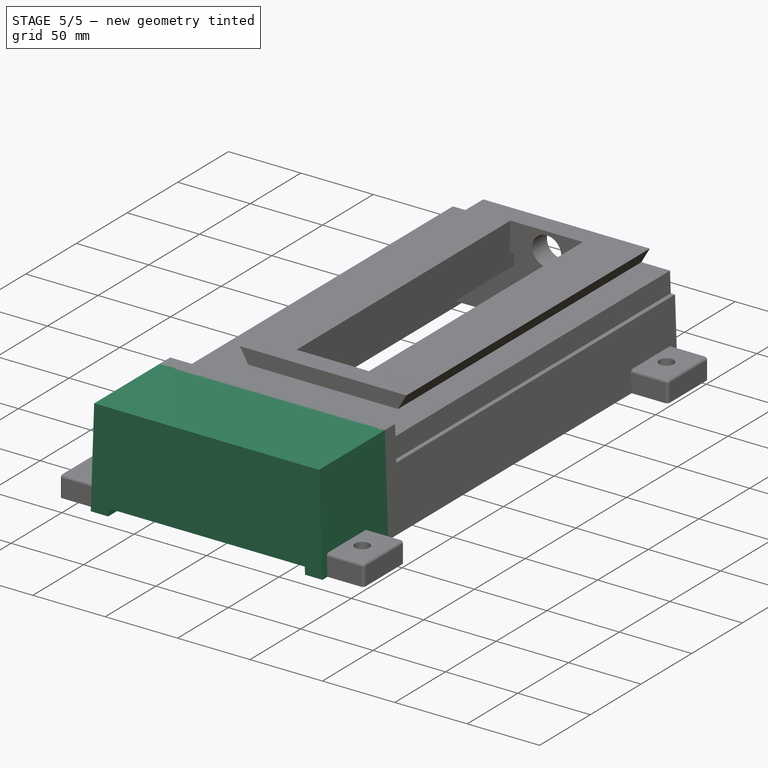
[diagram: stage 5 of 5 — iso view after this stage's code; geometry added in this stage tinted green]
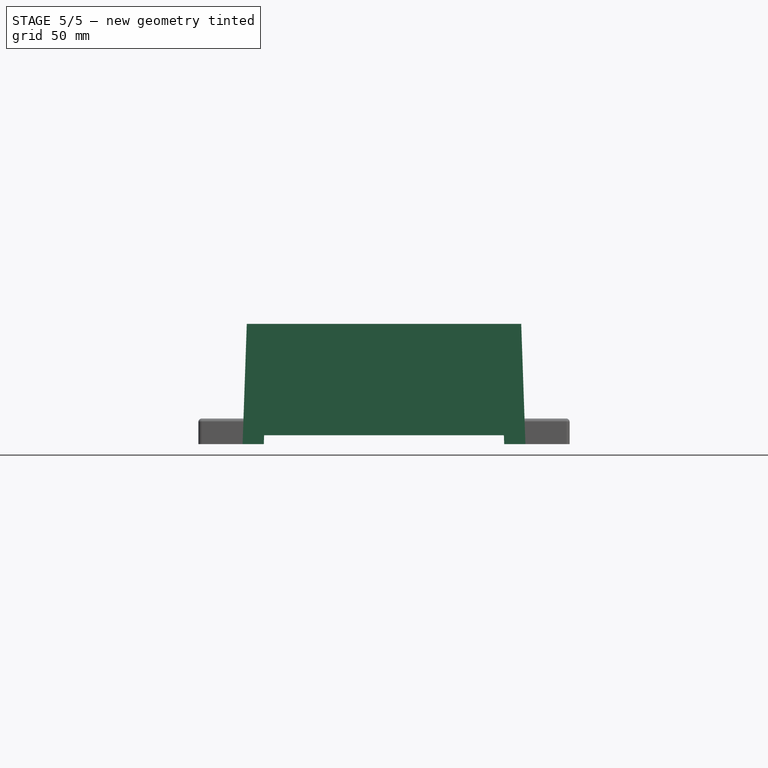
[diagram: stage 5 of 5 — front view after this stage's code; geometry added in this stage tinted green]
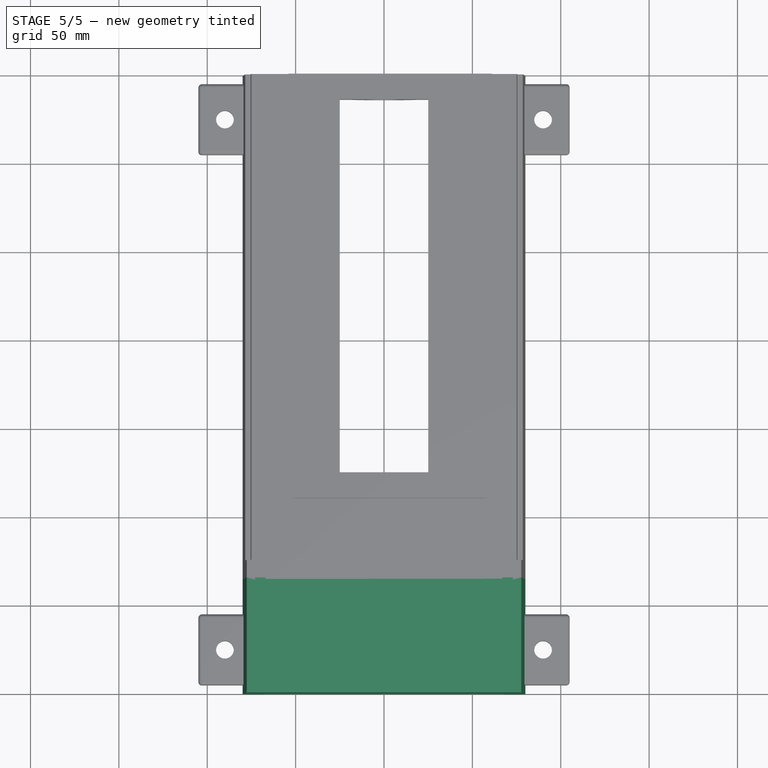
[diagram: stage 5 of 5 — top view after this stage's code; geometry added in this stage tinted green]
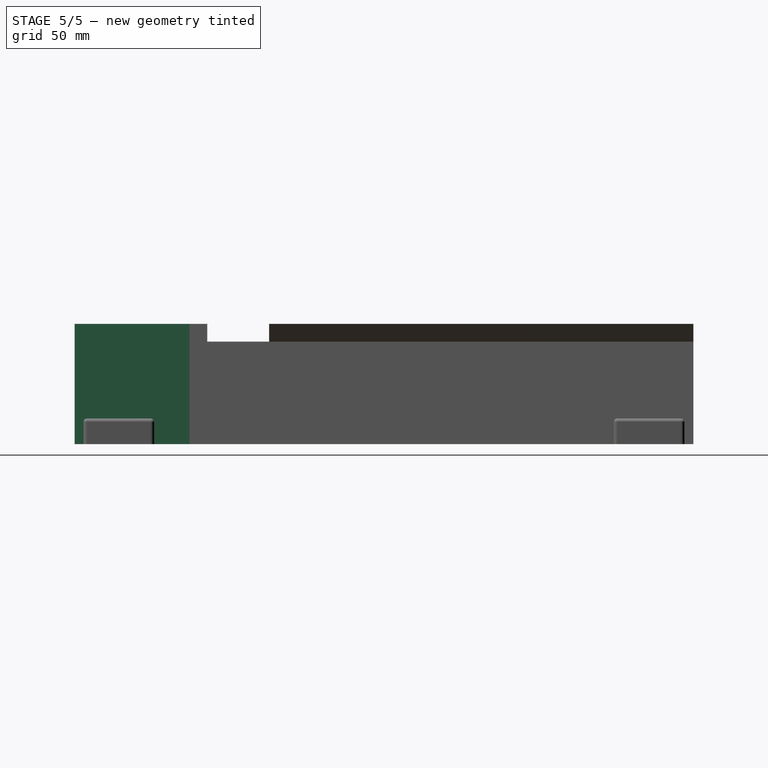
[diagram: stage 5 of 5 — right view after this stage's code; geometry added in this stage tinted green]
FEATURE [Sketcher::SketchObject] Sketch005  label="Section-008"
  Placement = pos=(0,-285,3e-12) rot=(1,0,0;1.5708rad)
  Support = -> Pad006 [Face151]
  sketch-geometry (8):
    g0: LineSegment StartX=-77.6254 StartY=68 StartZ=0 EndX=77.6254 EndY=68 EndZ=0
    g1: LineSegment StartX=80 StartY=0 StartZ=0 EndX=68 EndY=0 EndZ=0
    g2: LineSegment StartX=68 StartY=0 StartZ=0 EndX=66.3238 EndY=48 EndZ=0
    g3: LineSegment StartX=66.3238 StartY=48 StartZ=0 EndX=-66.3238 EndY=48 EndZ=0
    g4: LineSegment StartX=-66.3238 StartY=48 StartZ=0 EndX=-68 EndY=0 EndZ=0
    g5: LineSegment StartX=-68 StartY=0 StartZ=0 EndX=-80 EndY=0 EndZ=0
    g6: LineSegment StartX=-80 StartY=0 StartZ=0 EndX=-77.6254 EndY=68 EndZ=0
    g7: LineSegment StartX=80 StartY=0 StartZ=0 EndX=77.6254 EndY=68 EndZ=0
  constraints (23):
    c: Horizontal(g1)
    c: Coincident(g1,g2)
    c: Coincident(g2,g3)
    c: Horizontal(g3)
    c: Coincident(g3,g4)
    c: PointOnObject(g4,g-1)
    c: Coincident(g4,g5)
    c: PointOnObject(g5,g-1)
    c: Symmetric(g0,g0,g-2)
    c: DistanceY(g0,g4) = -68
    c: Symmetric(g5,g1,g-2)
    c: DistanceX(g5,g1) = 160
    c: DistanceY(g1,g2) = 48
    c: DistanceX(g1,g1) = -12
    c: Coincident(g5,g6)
    c: Coincident(g1,g7)
    c: Angle(g5,g6) = 1.53589
    c: Equal(g5,g1)
    c: Angle(g4,g3) = 1.6057
    c: Angle(g3,g2) = 1.6057
    c: Angle(g7,g1) = 1.53589
    c: Coincident(g7,g0)
    c: Coincident(g6,g0)
FEATURE [PartDesign::Pad] Pad007
  Length = 55
  Length2 = 100
  Placement = pos=(0,0,0) rot=(1,0,0;1.5708rad)
  Sketch = -> Sketch005
  Type = 0
FEATURE [Sketcher::SketchObject] Sketch007  label="Section-009"
  Placement = pos=(0,-340,4e-12) rot=(1,0,0;1.5708rad)
  Support = -> Pad007 [Face159]
  sketch-geometry (8):
    g0: LineSegment StartX=-77.6254 StartY=68 StartZ=0 EndX=77.6254 EndY=68 EndZ=0
    g1: LineSegment StartX=80 StartY=0 StartZ=0 EndX=68 EndY=0 EndZ=0
    g2: LineSegment StartX=68 StartY=0 StartZ=0 EndX=67.8254 EndY=5 EndZ=0
    g3: LineSegment StartX=67.8254 StartY=5 StartZ=0 EndX=-67.8254 EndY=5 EndZ=0
    g4: LineSegment StartX=-67.8254 StartY=5 StartZ=0 EndX=-68 EndY=0 EndZ=0
    g5: LineSegment StartX=-68 StartY=0 StartZ=0 EndX=-80 EndY=0 EndZ=0
    g6: LineSegment StartX=-80 StartY=0 StartZ=0 EndX=-77.6254 EndY=68 EndZ=0
    g7: LineSegment StartX=80 StartY=0 StartZ=0 EndX=77.6254 EndY=68 EndZ=0
  constraints (23):
    c: Horizontal(g1)
    c: Coincident(g1,g2)
    c: Coincident(g2,g3)
    c: Horizontal(g3)
    c: Coincident(g3,g4)
    c: PointOnObject(g4,g-1)
    c: Coincident(g4,g5)
    c: PointOnObject(g5,g-1)
    c: Symmetric(g0,g0,g-2)
    c: DistanceY(g0,g4) = -68
    c: Symmetric(g5,g1,g-2)
    c: DistanceX(g5,g1) = 160
    c: DistanceY(g1,g2) = 5
    c: DistanceX(g1,g1) = -12
    c: Coincident(g5,g6)
    c: Coincident(g1,g7)
    c: Angle(g5,g6) = 1.53589
    c: Equal(g5,g1)
    c: Angle(g4,g3) = 1.6057
    c: Angle(g3,g2) = 1.6057
    c: Angle(g7,g1) = 1.53589
    c: Coincident(g6,g0)
    c: Coincident(g7,g0)
FEATURE [PartDesign::Pad] Pad008
  Length = 10
  Length2 = 100
  Placement = pos=(0,0,0) rot=(1,0,0;1.5708rad)
  Sketch = -> Sketch007
  Type = 0
FEATURE [Sketcher::SketchObject] Sketch010  label="Sketch-010"
  Placement = pos=(0,1e-12,68) rot=(0,0,1;3.14159rad)
  Support = -> Pad007 [Face162]
  sketch-geometry (4):
    g0: Circle CenterX=70 CenterY=285 CenterZ=0 NormalX=0 NormalY=0 NormalZ=1 Radius=3
    g1: Circle CenterX=-70 CenterY=285 CenterZ=0 NormalX=0 NormalY=0 NormalZ=1 Radius=3
    g2: Circle CenterX=70 CenterY=335 CenterZ=0 NormalX=0 NormalY=0 NormalZ=1 Radius=3
    g3: Circle CenterX=-70 CenterY=335 CenterZ=0 NormalX=0 NormalY=0 NormalZ=1 Radius=3
  constraints (9):
    c: Symmetric(g1,g0,g-2)
    c: Symmetric(g3,g2,g-2)
    c: DistanceX(g1,g0) = 140
    c: DistanceY(g1,g3) = 50
    c: Equal(g3,g2)
    c: Equal(g2,g0)
    c: Equal(g0,g1)
    c: DistanceY(g-1,g1) = 285
    c: Radius(g0) = 3
FEATURE [PartDesign::Pocket] Pocket
  Length = 10
  Placement = pos=(0,0,0) rot=(1,0,0;1.5708rad)
  Sketch = -> Sketch010
  Type = 0
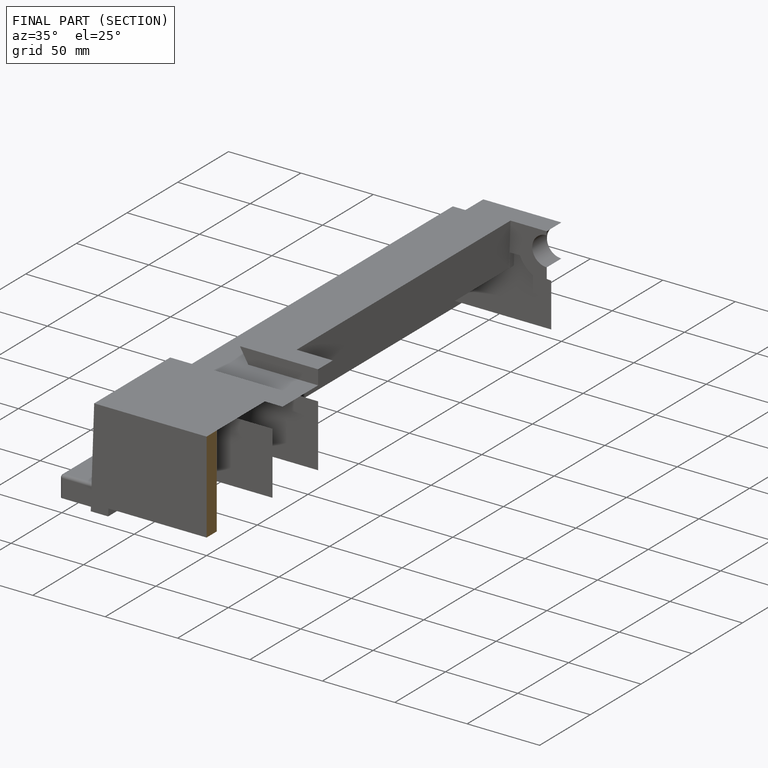
[diagram: finished part — half-section view (interior)]
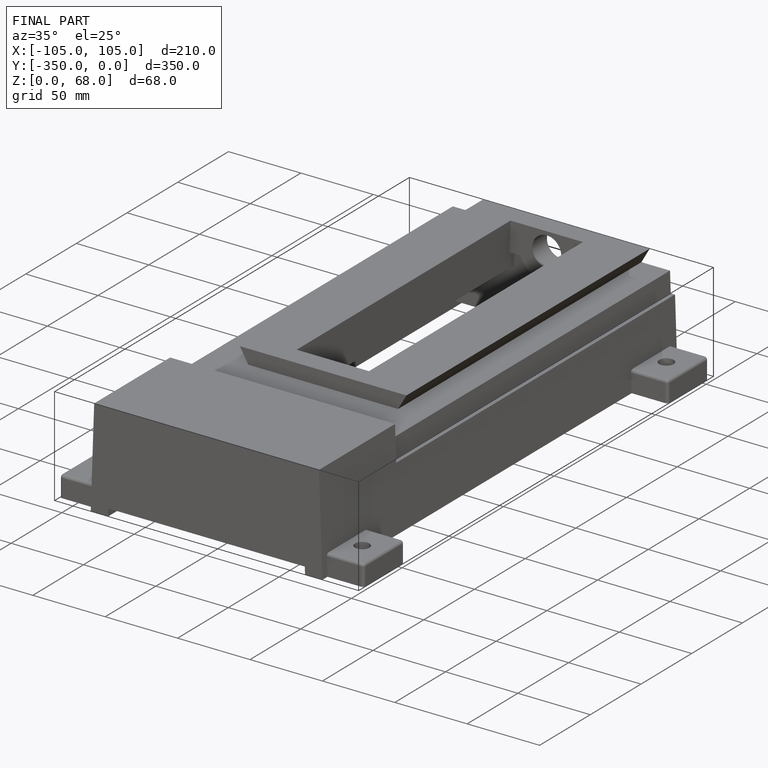
[diagram: finished part — iso view with bounding-box wireframe]
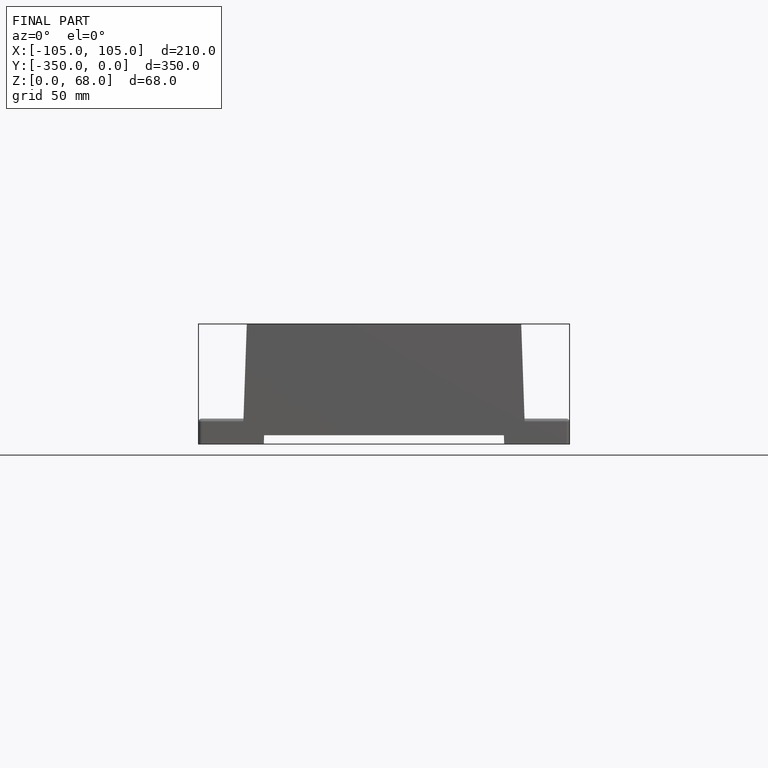
[diagram: finished part — front view with bounding-box wireframe]
